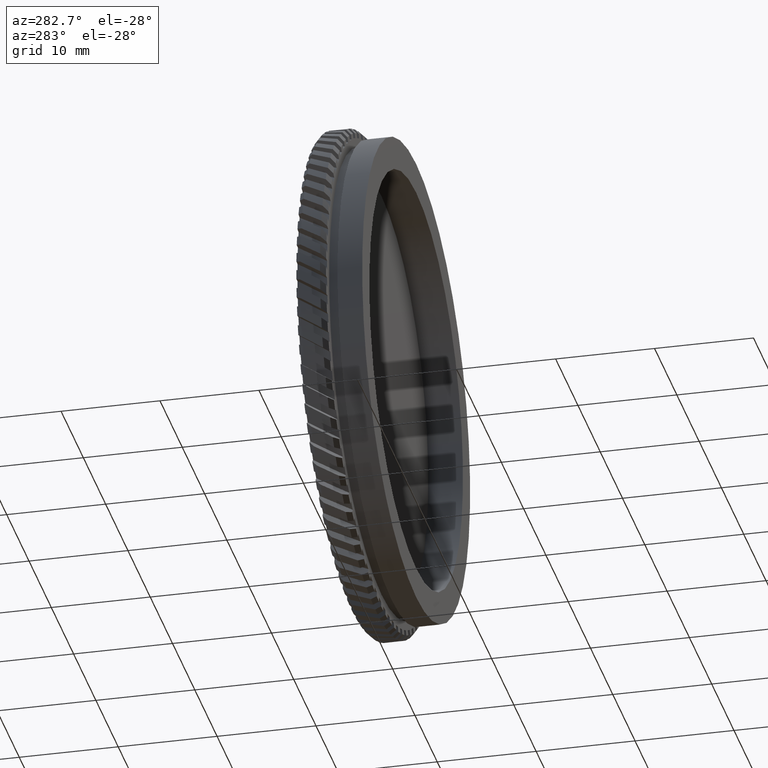
[diagram: clean part render]
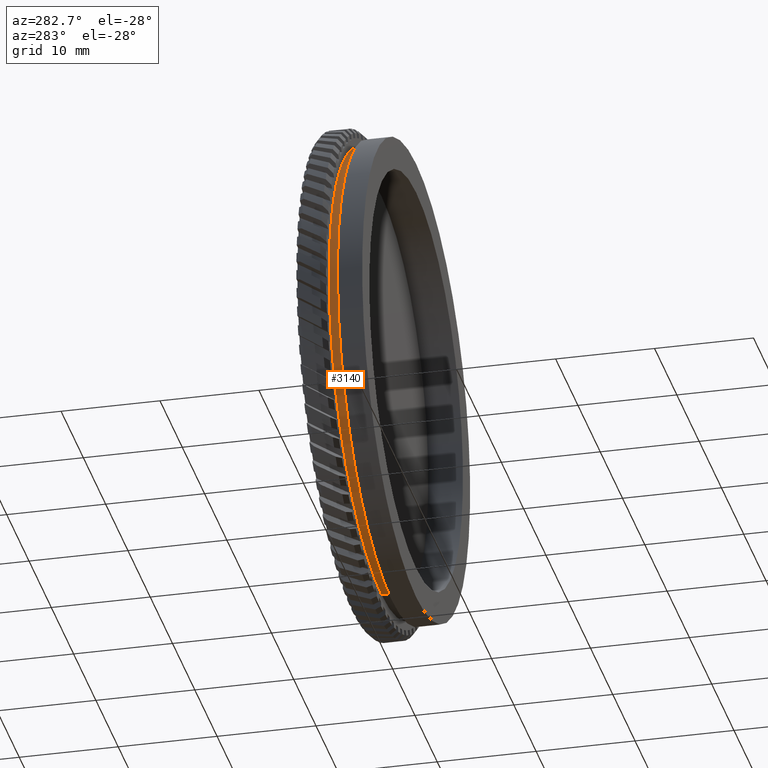
[diagram: same view with one face highlighted and labeled with its STEP entity id]
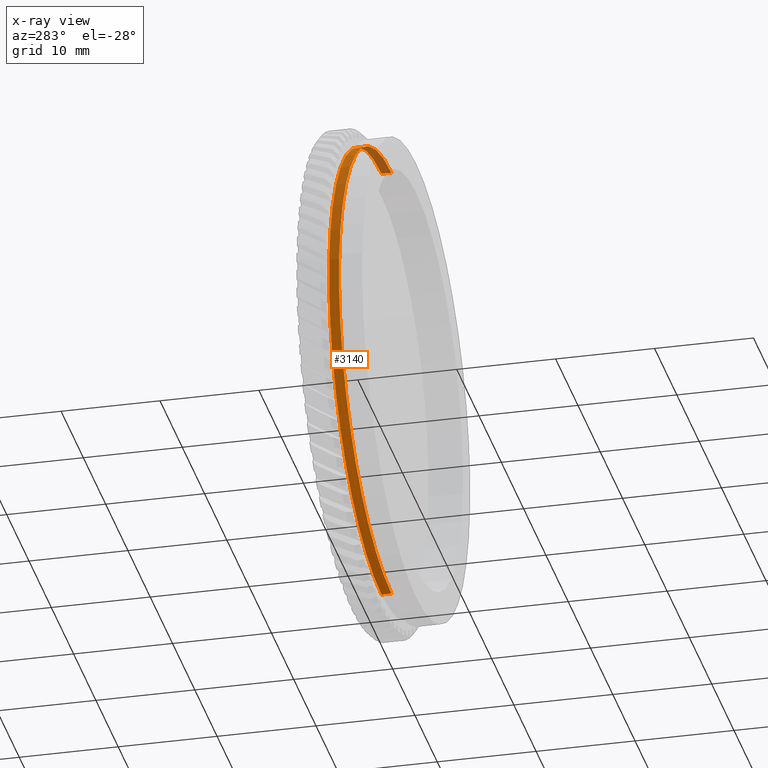
[diagram: x-ray of the same camera — body ghosted, the highlighted face saturated]
A machine part, auxiliary view. The second image highlights one B-rep face of the part: STEP entity #3140.
The next image is the same camera in x-ray: the body ghosted, the highlighted face saturated — about 6% of this face is hidden behind the body in this view.
In plain terms, the highlighted cylindrical surface (partial cylindrical patch) has radius 23.5 mm, axis along (-0, 1, -0).
Its self-contained STEP definition (entity closure, byte-faithful):
#606 = AXIS2_PLACEMENT_3D ( 'NONE', #8344, #13055, #19357 ) ;
#702 = AXIS2_PLACEMENT_3D ( 'NONE', #17552, #8075, #3549 ) ;
#2696 = CIRCLE ( 'NONE', #19214, 23.50000000000000700 ) ;
#2842 = VERTEX_POINT ( 'NONE', #18041 ) ;
#3140 = ADVANCED_FACE ( 'NONE', ( #17968 ), #17243, .T. ) ;
#3314 = CARTESIAN_POINT ( 'NONE',  ( 2.877919977996281100E-015, 18.87125740523061500, -23.50000000000000700 ) ) ;
#3549 = DIRECTION ( 'NONE',  ( 0.0000000000000000000, 0.0000000000000000000, 1.000000000000000000 ) ) ;
#3630 = VERTEX_POINT ( 'NONE', #3314 ) ;
#3870 = DIRECTION ( 'NONE',  ( -0.0000000000000000000, 1.000000000000000000, -0.0000000000000000000 ) ) ;
#5301 = LINE ( 'NONE', #17947, #6474 ) ;
#6474 = VECTOR ( 'NONE', #3870, 1000.000000000000000 ) ;
#6931 = VERTEX_POINT ( 'NONE', #17480 ) ;
#6948 = DIRECTION ( 'NONE',  ( -0.0000000000000000000, 1.000000000000000000, -0.0000000000000000000 ) ) ;
#7999 = LINE ( 'NONE', #10102, #16845 ) ;
#8075 = DIRECTION ( 'NONE',  ( -0.0000000000000000000, 1.000000000000000000, -0.0000000000000000000 ) ) ;
#8344 = CARTESIAN_POINT ( 'NONE',  ( 0.0000000000000000000, 17.87125740523061500, 0.0000000000000000000 ) ) ;
#8680 = ORIENTED_EDGE ( 'NONE', *, *, #12384, .T. ) ;
#10102 = CARTESIAN_POINT ( 'NONE',  ( 0.0000000000000000000, 66.62876213592232900, 23.50000000000000700 ) ) ;
#11087 = CARTESIAN_POINT ( 'NONE',  ( 0.0000000000000000000, 17.87125740523061500, 23.50000000000000700 ) ) ;
#12384 = EDGE_CURVE ( 'NONE', #17571, #6931, #7999, .T. ) ;
#12499 = CIRCLE ( 'NONE', #606, 23.50000000000000700 ) ;
#13015 = ORIENTED_EDGE ( 'NONE', *, *, #13757, .F. ) ;
#13055 = DIRECTION ( 'NONE',  ( -0.0000000000000000000, 1.000000000000000000, -0.0000000000000000000 ) ) ;
#13757 = EDGE_CURVE ( 'NONE', #3630, #6931, #2696, .T. ) ;
#15467 = EDGE_CURVE ( 'NONE', #2842, #3630, #5301, .T. ) ;
#16041 = DIRECTION ( 'NONE',  ( -0.0000000000000000000, 1.000000000000000000, -0.0000000000000000000 ) ) ;
#16199 = EDGE_CURVE ( 'NONE', #2842, #17571, #12499, .T. ) ;
#16660 = EDGE_LOOP ( 'NONE', ( #17443, #19817, #8680, #13015 ) ) ;
#16845 = VECTOR ( 'NONE', #6948, 1000.000000000000000 ) ;
#17243 = CYLINDRICAL_SURFACE ( 'NONE', #702, 23.50000000000000700 ) ;
#17443 = ORIENTED_EDGE ( 'NONE', *, *, #15467, .F. ) ;
#17480 = CARTESIAN_POINT ( 'NONE',  ( 0.0000000000000000000, 18.87125740523061500, 23.50000000000000700 ) ) ;
#17552 = CARTESIAN_POINT ( 'NONE',  ( 0.0000000000000000000, 66.62876213592232900, 0.0000000000000000000 ) ) ;
#17571 = VERTEX_POINT ( 'NONE', #11087 ) ;
#17606 = DIRECTION ( 'NONE',  ( 0.0000000000000000000, 0.0000000000000000000, 1.000000000000000000 ) ) ;
#17947 = CARTESIAN_POINT ( 'NONE',  ( 2.877919977996281100E-015, 66.62876213592232900, -23.50000000000000700 ) ) ;
#17968 = FACE_OUTER_BOUND ( 'NONE', #16660, .T. ) ;
#18041 = CARTESIAN_POINT ( 'NONE',  ( 2.877919977996281100E-015, 17.87125740523061500, -23.50000000000000700 ) ) ;
#19214 = AXIS2_PLACEMENT_3D ( 'NONE', #19283, #16041, #17606 ) ;
#19283 = CARTESIAN_POINT ( 'NONE',  ( 0.0000000000000000000, 18.87125740523061500, 0.0000000000000000000 ) ) ;
#19357 = DIRECTION ( 'NONE',  ( 0.0000000000000000000, 0.0000000000000000000, 1.000000000000000000 ) ) ;
#19817 = ORIENTED_EDGE ( 'NONE', *, *, #16199, .T. ) ;